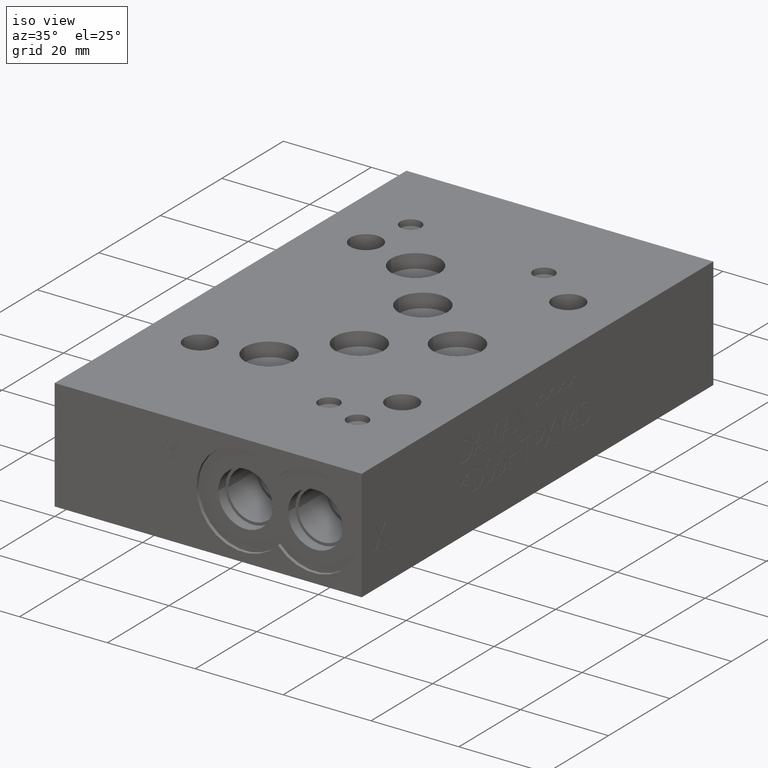
[diagram: clean part render]
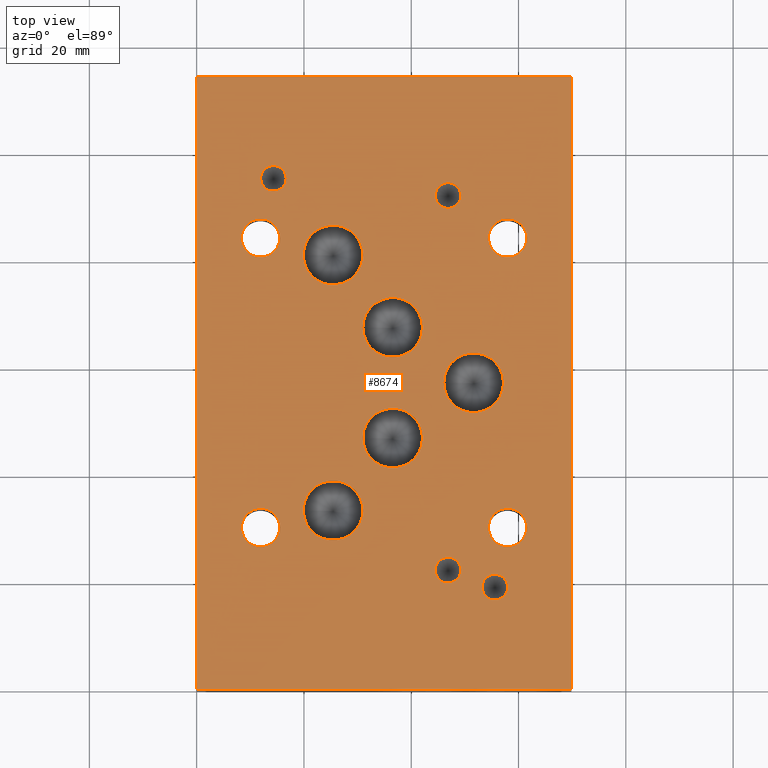
[diagram: tour spotlight — one face highlighted and labeled with its STEP entity id]
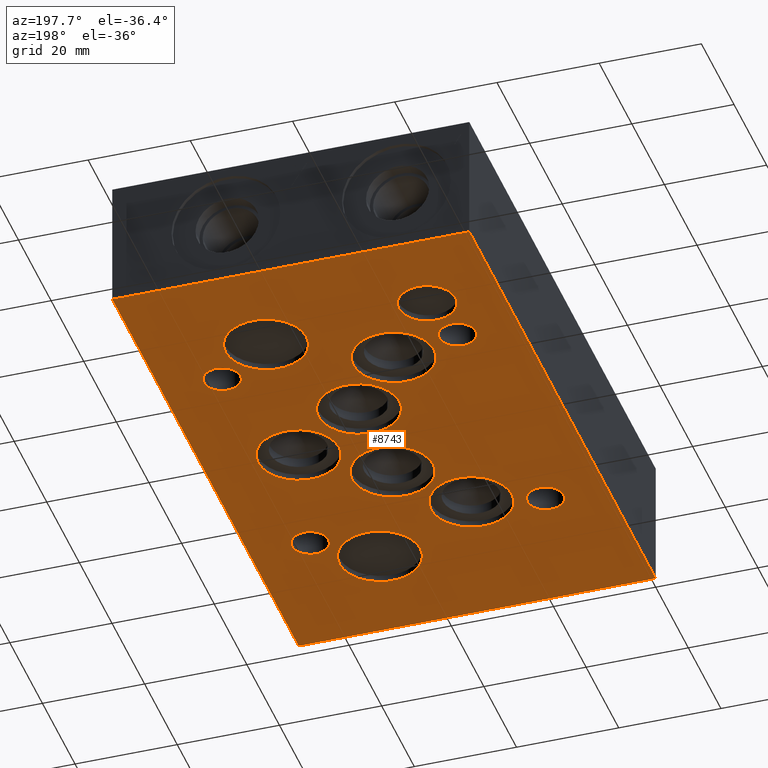
[diagram: tour spotlight — one face highlighted and labeled with its STEP entity id]
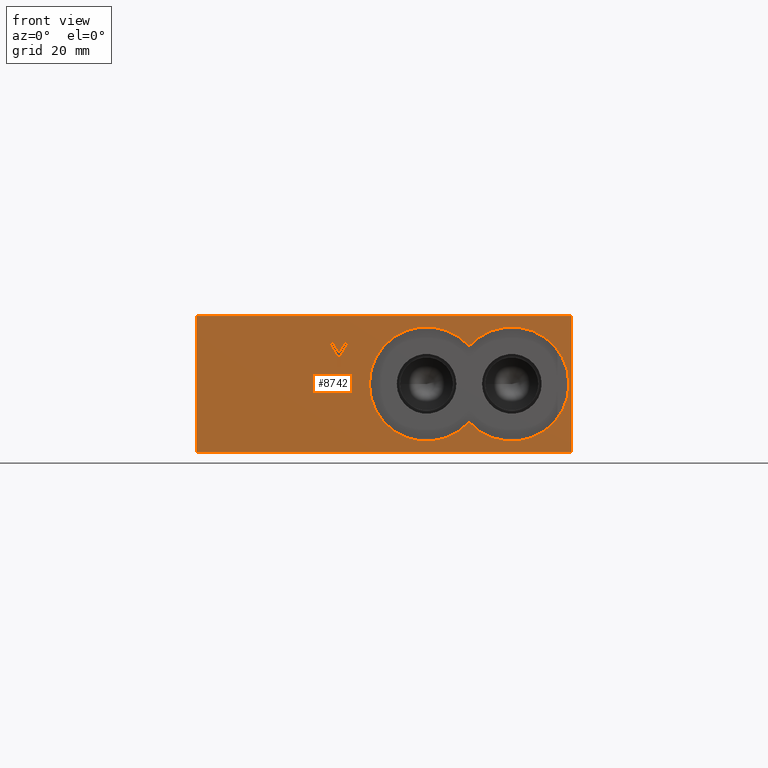
[diagram: tour spotlight — one face highlighted and labeled with its STEP entity id]
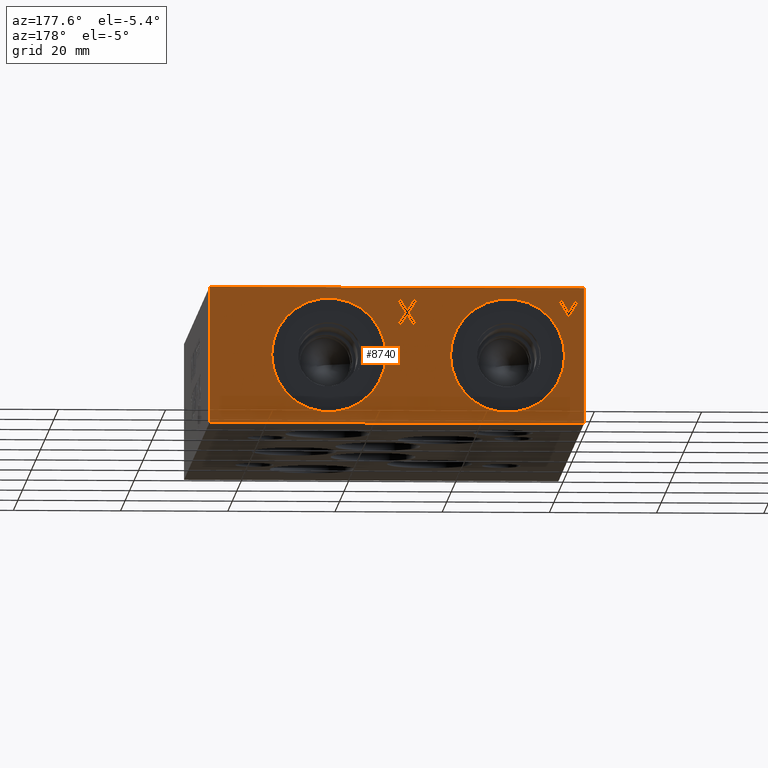
[diagram: tour spotlight — one face highlighted and labeled with its STEP entity id]
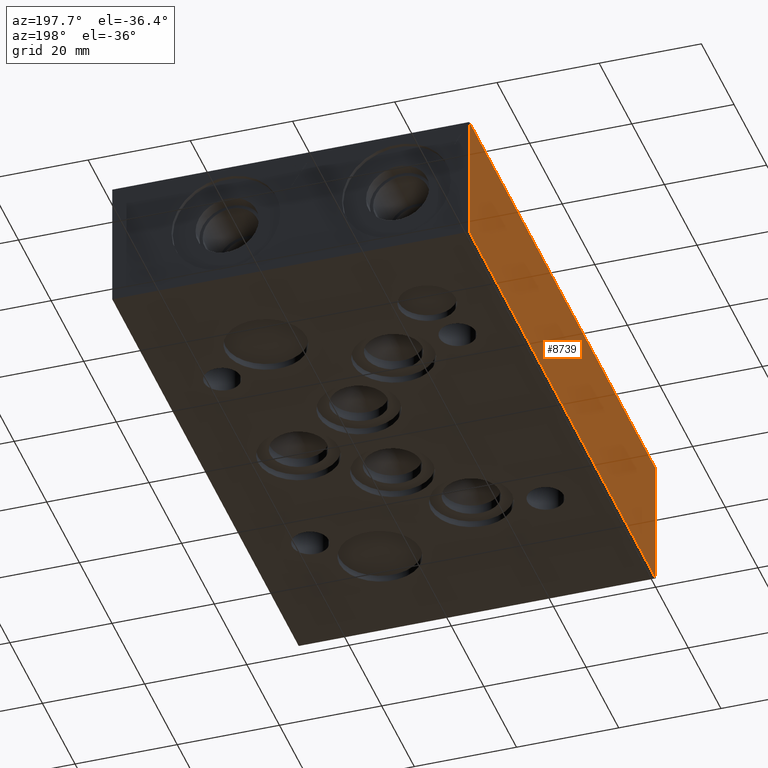
[diagram: tour spotlight — one face highlighted and labeled with its STEP entity id]
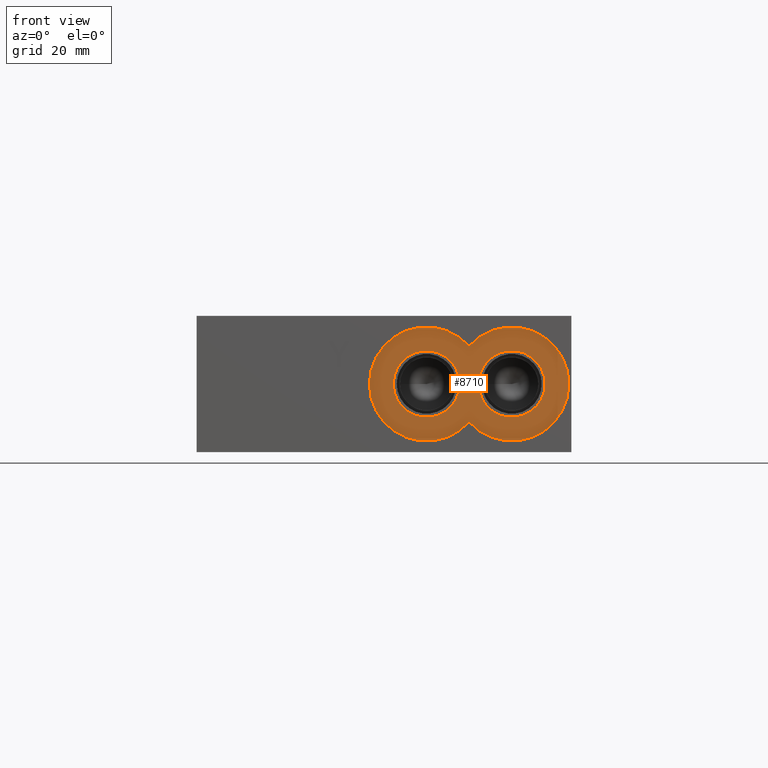
[diagram: tour spotlight — one face highlighted and labeled with its STEP entity id]
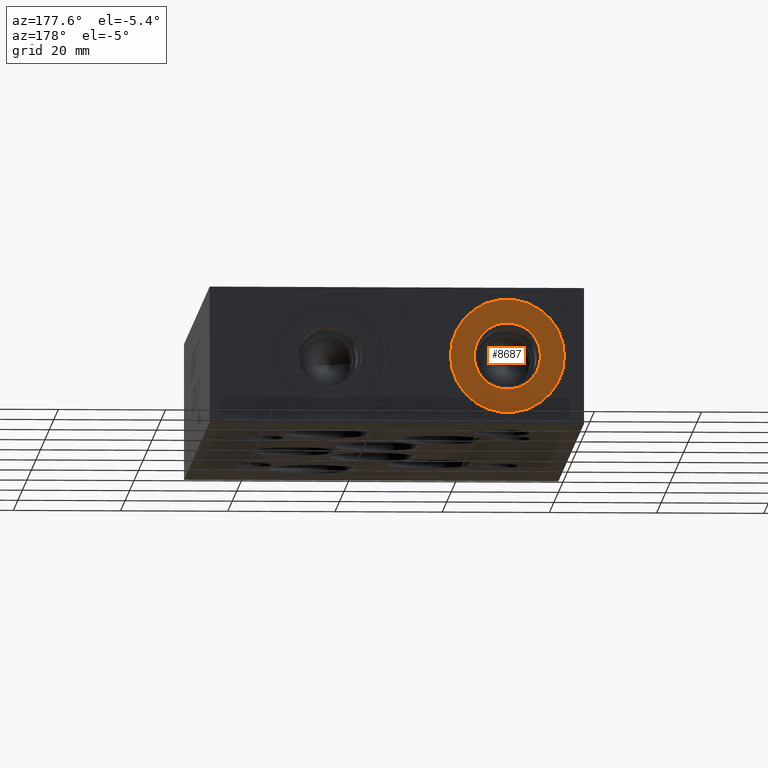
[diagram: tour spotlight — one face highlighted and labeled with its STEP entity id]
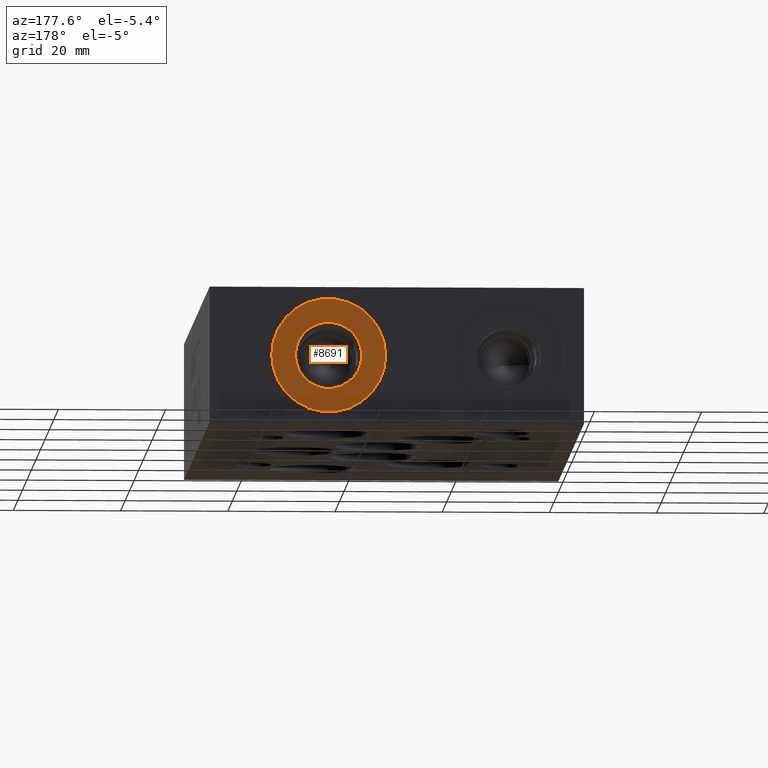
[diagram: tour spotlight — one face highlighted and labeled with its STEP entity id]
A machine part: a face-by-face anatomy tour. The part has 456 B-rep faces; the first image is the clean iso view, then the 8 largest visible faces are spotlighted one at a time (largest first), each with its STEP entity span.

Face 1 — top view, entity #8674. In plain terms, the highlighted planar face has unit normal (0, 0, 1).
Definition (entity closure, byte-faithful):
#66=CIRCLE('',#9107,3.5687);
#67=CIRCLE('',#9108,3.5687);
#69=CIRCLE('',#9111,3.5687);
#70=CIRCLE('',#9112,3.5687);
#72=CIRCLE('',#9115,3.5687);
#73=CIRCLE('',#9116,3.5687);
#74=CIRCLE('',#9118,3.5687);
#75=CIRCLE('',#9119,3.5687);
#76=CIRCLE('',#9120,3.5687);
#77=CIRCLE('',#9121,3.5687);
#78=CIRCLE('',#9122,5.5626);
#79=CIRCLE('',#9123,5.55625);
#80=CIRCLE('',#9124,5.55625);
#81=CIRCLE('',#9125,5.55625);
#82=CIRCLE('',#9126,5.55625);
#83=CIRCLE('',#9127,2.3876);
#84=CIRCLE('',#9128,2.3876);
#85=CIRCLE('',#9129,2.3876);
#86=CIRCLE('',#9130,2.3876);
#221=FACE_BOUND('',#1337,.T.);
#222=FACE_BOUND('',#1338,.T.);
#223=FACE_BOUND('',#1339,.T.);
#224=FACE_BOUND('',#1340,.T.);
#225=FACE_BOUND('',#1341,.T.);
#226=FACE_BOUND('',#1342,.T.);
#227=FACE_BOUND('',#1343,.T.);
#228=FACE_BOUND('',#1344,.T.);
#229=FACE_BOUND('',#1345,.T.);
#230=FACE_BOUND('',#1346,.T.);
#231=FACE_BOUND('',#1347,.T.);
#232=FACE_BOUND('',#1348,.T.);
#233=FACE_BOUND('',#1349,.T.);
#848=FACE_OUTER_BOUND('',#1336,.T.);
#1336=EDGE_LOOP('',(#7315,#7316,#7317,#7318));
#1337=EDGE_LOOP('',(#7319,#7320,#7321));
#1338=EDGE_LOOP('',(#7322,#7323,#7324));
#1339=EDGE_LOOP('',(#7325));
#1340=EDGE_LOOP('',(#7326,#7327,#7328));
#1341=EDGE_LOOP('',(#7329));
#1342=EDGE_LOOP('',(#7330));
#1343=EDGE_LOOP('',(#7331));
#1344=EDGE_LOOP('',(#7332));
#1345=EDGE_LOOP('',(#7333));
#1346=EDGE_LOOP('',(#7334));
#1347=EDGE_LOOP('',(#7335));
#1348=EDGE_LOOP('',(#7336));
#1349=EDGE_LOOP('',(#7337));
#1898=LINE('',#13060,#2835);
#2331=LINE('',#14218,#3268);
#2332=LINE('',#14220,#3269);
#2333=LINE('',#14221,#3270);
#2835=VECTOR('',#9992,10.);
#3268=VECTOR('',#10851,10.);
#3269=VECTOR('',#10852,10.);
#3270=VECTOR('',#10853,10.);
#3699=VERTEX_POINT('',#13057);
#3700=VERTEX_POINT('',#13059);
#4013=VERTEX_POINT('',#14126);
#4014=VERTEX_POINT('',#14128);
#4017=VERTEX_POINT('',#14151);
#4019=VERTEX_POINT('',#14157);
#4020=VERTEX_POINT('',#14159);
#4023=VERTEX_POINT('',#14182);
#4025=VERTEX_POINT('',#14188);
#4026=VERTEX_POINT('',#14190);
#4029=VERTEX_POINT('',#14213);
#4030=VERTEX_POINT('',#14217);
#4031=VERTEX_POINT('',#14219);
#4032=VERTEX_POINT('',#14224);
#4033=VERTEX_POINT('',#14227);
#4034=VERTEX_POINT('',#14229);
#4035=VERTEX_POINT('',#14231);
#4036=VERTEX_POINT('',#14233);
#4037=VERTEX_POINT('',#14235);
#4038=VERTEX_POINT('',#14237);
#4039=VERTEX_POINT('',#14239);
#4040=VERTEX_POINT('',#14241);
#4041=VERTEX_POINT('',#14243);
#4670=EDGE_CURVE('',#3700,#3699,#1898,.T.);
#5138=EDGE_CURVE('',#4014,#4013,#66,.T.);
#5142=EDGE_CURVE('',#4013,#4017,#67,.T.);
#5145=EDGE_CURVE('',#4020,#4019,#69,.T.);
#5149=EDGE_CURVE('',#4019,#4023,#70,.T.);
#5152=EDGE_CURVE('',#4026,#4025,#72,.T.);
#5156=EDGE_CURVE('',#4025,#4029,#73,.T.);
#5157=EDGE_CURVE('',#4030,#3700,#2331,.T.);
#5158=EDGE_CURVE('',#3699,#4031,#2332,.T.);
#5159=EDGE_CURVE('',#4031,#4030,#2333,.T.);
#5160=EDGE_CURVE('',#4029,#4026,#74,.T.);
#5161=EDGE_CURVE('',#4023,#4020,#75,.T.);
#5162=EDGE_CURVE('',#4032,#4032,#76,.T.);
#5163=EDGE_CURVE('',#4017,#4014,#77,.T.);
#5164=EDGE_CURVE('',#4033,#4033,#78,.T.);
#5165=EDGE_CURVE('',#4034,#4034,#79,.T.);
#5166=EDGE_CURVE('',#4035,#4035,#80,.T.);
#5167=EDGE_CURVE('',#4036,#4036,#81,.T.);
#5168=EDGE_CURVE('',#4037,#4037,#82,.T.);
#5169=EDGE_CURVE('',#4038,#4038,#83,.T.);
#5170=EDGE_CURVE('',#4039,#4039,#84,.T.);
#5171=EDGE_CURVE('',#4040,#4040,#85,.T.);
#5172=EDGE_CURVE('',#4041,#4041,#86,.T.);
#7315=ORIENTED_EDGE('',*,*,#5157,.T.);
#7316=ORIENTED_EDGE('',*,*,#4670,.T.);
#7317=ORIENTED_EDGE('',*,*,#5158,.T.);
#7318=ORIENTED_EDGE('',*,*,#5159,.T.);
#7319=ORIENTED_EDGE('',*,*,#5152,.T.);
#7320=ORIENTED_EDGE('',*,*,#5156,.T.);
#7321=ORIENTED_EDGE('',*,*,#5160,.T.);
#7322=ORIENTED_EDGE('',*,*,#5145,.T.);
#7323=ORIENTED_EDGE('',*,*,#5149,.T.);
#7324=ORIENTED_EDGE('',*,*,#5161,.T.);
#7325=ORIENTED_EDGE('',*,*,#5162,.T.);
#7326=ORIENTED_EDGE('',*,*,#5138,.T.);
#7327=ORIENTED_EDGE('',*,*,#5142,.T.);
#7328=ORIENTED_EDGE('',*,*,#5163,.T.);
#7329=ORIENTED_EDGE('',*,*,#5164,.T.);
#7330=ORIENTED_EDGE('',*,*,#5165,.T.);
#7331=ORIENTED_EDGE('',*,*,#5166,.T.);
#7332=ORIENTED_EDGE('',*,*,#5167,.T.);
#7333=ORIENTED_EDGE('',*,*,#5168,.T.);
#7334=ORIENTED_EDGE('',*,*,#5169,.T.);
#7335=ORIENTED_EDGE('',*,*,#5170,.T.);
#7336=ORIENTED_EDGE('',*,*,#5171,.T.);
#7337=ORIENTED_EDGE('',*,*,#5172,.T.);
#7920=PLANE('',#9117);
#8674=ADVANCED_FACE('',(#848,#221,#222,#223,#224,#225,#226,#227,#228,#229,
#230,#231,#232,#233),#7920,.T.);
#9107=AXIS2_PLACEMENT_3D('',#14129,#10821,#10822);
#9108=AXIS2_PLACEMENT_3D('',#14153,#10825,#10826);
#9111=AXIS2_PLACEMENT_3D('',#14160,#10832,#10833);
#9112=AXIS2_PLACEMENT_3D('',#14184,#10836,#10837);
#9115=AXIS2_PLACEMENT_3D('',#14191,#10843,#10844);
#9116=AXIS2_PLACEMENT_3D('',#14215,#10847,#10848);
#9117=AXIS2_PLACEMENT_3D('',#14216,#10849,#10850);
#9118=AXIS2_PLACEMENT_3D('',#14222,#10854,#10855);
#9119=AXIS2_PLACEMENT_3D('',#14223,#10856,#10857);
#9120=AXIS2_PLACEMENT_3D('',#14225,#10858,#10859);
#9121=AXIS2_PLACEMENT_3D('',#14226,#10860,#10861);
#9122=AXIS2_PLACEMENT_3D('',#14228,#10862,#10863);
#9123=AXIS2_PLACEMENT_3D('',#14230,#10864,#10865);
#9124=AXIS2_PLACEMENT_3D('',#14232,#10866,#10867);
#9125=AXIS2_PLACEMENT_3D('',#14234,#10868,#10869);
#9126=AXIS2_PLACEMENT_3D('',#14236,#10870,#10871);
#9127=AXIS2_PLACEMENT_3D('',#14238,#10872,#10873);
#9128=AXIS2_PLACEMENT_3D('',#14240,#10874,#10875);
#9129=AXIS2_PLACEMENT_3D('',#14242,#10876,#10877);
#9130=AXIS2_PLACEMENT_3D('',#14244,#10878,#10879);
#9992=DIRECTION('',(0.,1.,0.));
#10821=DIRECTION('center_axis',(0.,0.,-1.));
#10822=DIRECTION('ref_axis',(1.,0.,0.));
#10825=DIRECTION('center_axis',(0.,0.,-1.));
#10826=DIRECTION('ref_axis',(1.,0.,0.));
#10832=DIRECTION('center_axis',(0.,0.,-1.));
#10833=DIRECTION('ref_axis',(1.,0.,0.));
#10836=DIRECTION('center_axis',(0.,0.,-1.));
#10837=DIRECTION('ref_axis',(1.,0.,0.));
#10843=DIRECTION('center_axis',(0.,0.,-1.));
#10844=DIRECTION('ref_axis',(1.,0.,0.));
#10847=DIRECTION('center_axis',(0.,0.,-1.));
#10848=DIRECTION('ref_axis',(1.,0.,0.));
#10849=DIRECTION('center_axis',(0.,0.,1.));
#10850=DIRECTION('ref_axis',(1.,0.,0.));
#10851=DIRECTION('',(1.,0.,0.));
#10852=DIRECTION('',(-1.,0.,0.));
#10853=DIRECTION('',(0.,-1.,0.));
#10854=DIRECTION('center_axis',(0.,0.,-1.));
#10855=DIRECTION('ref_axis',(1.,0.,0.));
#10856=DIRECTION('center_axis',(0.,0.,-1.));
#10857=DIRECTION('ref_axis',(1.,0.,0.));
#10858=DIRECTION('center_axis',(0.,0.,-1.));
#10859=DIRECTION('ref_axis',(1.,0.,0.));
#10860=DIRECTION('center_axis',(0.,0.,-1.));
#10861=DIRECTION('ref_axis',(1.,0.,0.));
#10862=DIRECTION('center_axis',(0.,0.,-1.));
#10863=DIRECTION('ref_axis',(1.,0.,0.));
#10864=DIRECTION('center_axis',(0.,0.,-1.));
#10865=DIRECTION('ref_axis',(1.,0.,0.));
#10866=DIRECTION('center_axis',(0.,0.,-1.));
#10867=DIRECTION('ref_axis',(1.,0.,0.));
#10868=DIRECTION('center_axis',(0.,0.,-1.));
#10869=DIRECTION('ref_axis',(1.,0.,0.));
#10870=DIRECTION('center_axis',(0.,0.,-1.));
#10871=DIRECTION('ref_axis',(1.,0.,0.));
#10872=DIRECTION('center_axis',(0.,0.,-1.));
#10873=DIRECTION('ref_axis',(1.,0.,0.));
#10874=DIRECTION('center_axis',(0.,0.,-1.));
#10875=DIRECTION('ref_axis',(1.,0.,0.));
#10876=DIRECTION('center_axis',(0.,0.,-1.));
#10877=DIRECTION('ref_axis',(1.,0.,0.));
#10878=DIRECTION('center_axis',(0.,0.,-1.));
#10879=DIRECTION('ref_axis',(1.,0.,0.));
#13057=CARTESIAN_POINT('',(69.85,114.3,25.4));
#13059=CARTESIAN_POINT('',(69.85,0.,25.4));
#13060=CARTESIAN_POINT('',(69.85,0.,25.4));
#14126=CARTESIAN_POINT('',(54.3941,30.1752,25.4));
#14128=CARTESIAN_POINT('',(54.3941056494707,30.16885,25.4));
#14129=CARTESIAN_POINT('Origin',(57.9628,30.1752,25.4));
#14151=CARTESIAN_POINT('',(61.5314943505293,30.16885,25.4));
#14153=CARTESIAN_POINT('Origin',(57.9628,30.1752,25.4));
#14157=CARTESIAN_POINT('',(54.3941,84.1629,25.4));
#14159=CARTESIAN_POINT('',(54.3941225979363,84.1502,25.4));
#14160=CARTESIAN_POINT('Origin',(57.9628,84.1629,25.4));
#14182=CARTESIAN_POINT('',(61.5314774020637,84.1502,25.4));
#14184=CARTESIAN_POINT('Origin',(57.9628,84.1629,25.4));
#14188=CARTESIAN_POINT('',(8.3566,30.1752,25.4));
#14190=CARTESIAN_POINT('',(8.35660564947067,30.16885,25.4));
#14191=CARTESIAN_POINT('Origin',(11.9253,30.1752,25.4));
#14213=CARTESIAN_POINT('',(15.4939943505293,30.16885,25.4));
#14215=CARTESIAN_POINT('Origin',(11.9253,30.1752,25.4));
#14216=CARTESIAN_POINT('Origin',(34.925,57.15,25.4));
#14217=CARTESIAN_POINT('',(0.,0.,25.4));
#14218=CARTESIAN_POINT('',(0.,0.,25.4));
#14219=CARTESIAN_POINT('',(0.,114.3,25.4));
#14220=CARTESIAN_POINT('',(69.85,114.3,25.4));
#14221=CARTESIAN_POINT('',(0.,114.3,25.4));
#14222=CARTESIAN_POINT('Origin',(11.9253,30.1625,25.4));
#14223=CARTESIAN_POINT('Origin',(57.9628,84.1375,25.4));
#14224=CARTESIAN_POINT('',(8.3439,84.1502,25.4));
#14225=CARTESIAN_POINT('Origin',(11.9126,84.1502,25.4));
#14226=CARTESIAN_POINT('Origin',(57.9628,30.1625,25.4));
#14227=CARTESIAN_POINT('',(46.0756,57.1627,25.4));
#14228=CARTESIAN_POINT('Origin',(51.6382,57.1627,25.4));
#14229=CARTESIAN_POINT('',(19.87677,33.3502,25.4));
#14230=CARTESIAN_POINT('Origin',(25.43302,33.3502,25.4));
#14231=CARTESIAN_POINT('',(30.98165,67.48018,25.4));
#14232=CARTESIAN_POINT('Origin',(36.5379,67.48018,25.4));
#14233=CARTESIAN_POINT('',(19.87677,80.9752,25.4));
#14234=CARTESIAN_POINT('Origin',(25.43302,80.9752,25.4));
#14235=CARTESIAN_POINT('',(30.98673,46.84522,25.4));
#14236=CARTESIAN_POINT('Origin',(36.54298,46.84522,25.4));
#14237=CARTESIAN_POINT('',(44.4754,22.225,25.4));
#14238=CARTESIAN_POINT('Origin',(46.863,22.225,25.4));
#14239=CARTESIAN_POINT('',(11.9253,95.2627,25.4));
#14240=CARTESIAN_POINT('Origin',(14.3129,95.2627,25.4));
#14241=CARTESIAN_POINT('',(53.2003,19.0627,25.4));
#14242=CARTESIAN_POINT('Origin',(55.5879,19.0627,25.4));
#14243=CARTESIAN_POINT('',(44.4754,92.075,25.4));
#14244=CARTESIAN_POINT('Origin',(46.863,92.075,25.4));

Face 2 — auxiliary view, entity #8743. In plain terms, the highlighted planar face has unit normal (0, 0, 1).
Definition (entity closure, byte-faithful):
#39=CIRCLE('',#9054,5.5626);
#51=CIRCLE('',#9078,7.9375);
#53=CIRCLE('',#9082,7.9375);
#55=CIRCLE('',#9086,7.9375);
#57=CIRCLE('',#9090,7.9375);
#59=CIRCLE('',#9094,7.9375);
#61=CIRCLE('',#9098,7.9375);
#63=CIRCLE('',#9102,7.9375);
#65=CIRCLE('',#9106,3.5687);
#68=CIRCLE('',#9110,3.5687);
#71=CIRCLE('',#9114,3.5687);
#137=CIRCLE('',#9241,3.5687);
#252=FACE_BOUND('',#1437,.T.);
#253=FACE_BOUND('',#1438,.T.);
#254=FACE_BOUND('',#1439,.T.);
#255=FACE_BOUND('',#1440,.T.);
#256=FACE_BOUND('',#1441,.T.);
#257=FACE_BOUND('',#1442,.T.);
#258=FACE_BOUND('',#1443,.T.);
#259=FACE_BOUND('',#1444,.T.);
#260=FACE_BOUND('',#1445,.T.);
#261=FACE_BOUND('',#1446,.T.);
#262=FACE_BOUND('',#1447,.T.);
#263=FACE_BOUND('',#1448,.T.);
#917=FACE_OUTER_BOUND('',#1436,.T.);
#1436=EDGE_LOOP('',(#7604,#7605,#7606,#7607));
#1437=EDGE_LOOP('',(#7608));
#1438=EDGE_LOOP('',(#7609));
#1439=EDGE_LOOP('',(#7610));
#1440=EDGE_LOOP('',(#7611));
#1441=EDGE_LOOP('',(#7612));
#1442=EDGE_LOOP('',(#7613));
#1443=EDGE_LOOP('',(#7614));
#1444=EDGE_LOOP('',(#7615));
#1445=EDGE_LOOP('',(#7616));
#1446=EDGE_LOOP('',(#7617));
#1447=EDGE_LOOP('',(#7618));
#1448=EDGE_LOOP('',(#7619));
#1896=LINE('',#13056,#2833);
#2381=LINE('',#14475,#3318);
#2384=LINE('',#14479,#3321);
#2385=LINE('',#14482,#3322);
#2833=VECTOR('',#9990,10.);
#3318=VECTOR('',#11163,10.);
#3321=VECTOR('',#11168,10.);
#3322=VECTOR('',#11173,10.);
#3697=VERTEX_POINT('',#13054);
#3698=VERTEX_POINT('',#13055);
#3981=VERTEX_POINT('',#14023);
#3998=VERTEX_POINT('',#14075);
#4000=VERTEX_POINT('',#14082);
#4002=VERTEX_POINT('',#14089);
#4004=VERTEX_POINT('',#14096);
#4006=VERTEX_POINT('',#14103);
#4008=VERTEX_POINT('',#14110);
#4010=VERTEX_POINT('',#14117);
#4012=VERTEX_POINT('',#14124);
#4018=VERTEX_POINT('',#14155);
#4024=VERTEX_POINT('',#14186);
#4104=VERTEX_POINT('',#14463);
#4105=VERTEX_POINT('',#14473);
#4106=VERTEX_POINT('',#14474);
#4668=EDGE_CURVE('',#3697,#3698,#1896,.T.);
#5092=EDGE_CURVE('',#3981,#3981,#39,.T.);
#5115=EDGE_CURVE('',#3998,#3998,#51,.T.);
#5118=EDGE_CURVE('',#4000,#4000,#53,.T.);
#5121=EDGE_CURVE('',#4002,#4002,#55,.T.);
#5124=EDGE_CURVE('',#4004,#4004,#57,.T.);
#5127=EDGE_CURVE('',#4006,#4006,#59,.T.);
#5130=EDGE_CURVE('',#4008,#4008,#61,.T.);
#5133=EDGE_CURVE('',#4010,#4010,#63,.T.);
#5136=EDGE_CURVE('',#4012,#4012,#65,.T.);
#5143=EDGE_CURVE('',#4018,#4018,#68,.T.);
#5150=EDGE_CURVE('',#4024,#4024,#71,.T.);
#5270=EDGE_CURVE('',#4104,#4104,#137,.T.);
#5273=EDGE_CURVE('',#4105,#4106,#2381,.T.);
#5276=EDGE_CURVE('',#3698,#4105,#2384,.T.);
#5277=EDGE_CURVE('',#4106,#3697,#2385,.T.);
#7604=ORIENTED_EDGE('',*,*,#5277,.F.);
#7605=ORIENTED_EDGE('',*,*,#5273,.F.);
#7606=ORIENTED_EDGE('',*,*,#5276,.F.);
#7607=ORIENTED_EDGE('',*,*,#4668,.F.);
#7608=ORIENTED_EDGE('',*,*,#5092,.T.);
#7609=ORIENTED_EDGE('',*,*,#5115,.T.);
#7610=ORIENTED_EDGE('',*,*,#5118,.T.);
#7611=ORIENTED_EDGE('',*,*,#5121,.T.);
#7612=ORIENTED_EDGE('',*,*,#5124,.T.);
#7613=ORIENTED_EDGE('',*,*,#5127,.T.);
#7614=ORIENTED_EDGE('',*,*,#5130,.T.);
#7615=ORIENTED_EDGE('',*,*,#5133,.T.);
#7616=ORIENTED_EDGE('',*,*,#5136,.T.);
#7617=ORIENTED_EDGE('',*,*,#5270,.T.);
#7618=ORIENTED_EDGE('',*,*,#5143,.T.);
#7619=ORIENTED_EDGE('',*,*,#5150,.T.);
#7936=PLANE('',#9252);
#8743=ADVANCED_FACE('',(#917,#252,#253,#254,#255,#256,#257,#258,#259,#260,
#261,#262,#263),#7936,.F.);
#9054=AXIS2_PLACEMENT_3D('',#14024,#10696,#10697);
#9078=AXIS2_PLACEMENT_3D('',#14076,#10755,#10756);
#9082=AXIS2_PLACEMENT_3D('',#14083,#10764,#10765);
#9086=AXIS2_PLACEMENT_3D('',#14090,#10773,#10774);
#9090=AXIS2_PLACEMENT_3D('',#14097,#10782,#10783);
#9094=AXIS2_PLACEMENT_3D('',#14104,#10791,#10792);
#9098=AXIS2_PLACEMENT_3D('',#14111,#10800,#10801);
#9102=AXIS2_PLACEMENT_3D('',#14118,#10809,#10810);
#9106=AXIS2_PLACEMENT_3D('',#14125,#10818,#10819);
#9110=AXIS2_PLACEMENT_3D('',#14156,#10829,#10830);
#9114=AXIS2_PLACEMENT_3D('',#14187,#10840,#10841);
#9241=AXIS2_PLACEMENT_3D('',#14465,#11147,#11148);
#9252=AXIS2_PLACEMENT_3D('',#14483,#11174,#11175);
#9990=DIRECTION('',(0.,1.,0.));
#10696=DIRECTION('center_axis',(0.,0.,1.));
#10697=DIRECTION('ref_axis',(1.,0.,0.));
#10755=DIRECTION('center_axis',(0.,0.,1.));
#10756=DIRECTION('ref_axis',(1.,0.,0.));
#10764=DIRECTION('center_axis',(0.,0.,1.));
#10765=DIRECTION('ref_axis',(1.,0.,0.));
#10773=DIRECTION('center_axis',(0.,0.,1.));
#10774=DIRECTION('ref_axis',(1.,0.,0.));
#10782=DIRECTION('center_axis',(0.,0.,1.));
#10783=DIRECTION('ref_axis',(1.,0.,0.));
#10791=DIRECTION('center_axis',(0.,0.,1.));
#10792=DIRECTION('ref_axis',(1.,0.,0.));
#10800=DIRECTION('center_axis',(0.,0.,1.));
#10801=DIRECTION('ref_axis',(1.,0.,0.));
#10809=DIRECTION('center_axis',(0.,0.,1.));
#10810=DIRECTION('ref_axis',(1.,0.,0.));
#10818=DIRECTION('center_axis',(0.,0.,1.));
#10819=DIRECTION('ref_axis',(1.,0.,0.));
#10829=DIRECTION('center_axis',(0.,0.,1.));
#10830=DIRECTION('ref_axis',(1.,0.,0.));
#10840=DIRECTION('center_axis',(0.,0.,1.));
#10841=DIRECTION('ref_axis',(1.,0.,0.));
#11147=DIRECTION('center_axis',(0.,0.,1.));
#11148=DIRECTION('ref_axis',(1.,0.,0.));
#11163=DIRECTION('',(0.,-1.,0.));
#11168=DIRECTION('',(-1.,0.,0.));
#11173=DIRECTION('',(1.,0.,0.));
#11174=DIRECTION('center_axis',(0.,0.,1.));
#11175=DIRECTION('ref_axis',(1.,0.,0.));
#13054=CARTESIAN_POINT('',(69.85,0.,0.));
#13055=CARTESIAN_POINT('',(69.85,114.3,0.));
#13056=CARTESIAN_POINT('',(69.85,0.,0.));
#14023=CARTESIAN_POINT('',(8.7376,95.2754,0.));
#14024=CARTESIAN_POINT('Origin',(14.3002,95.2754,0.));
#14075=CARTESIAN_POINT('',(38.9255,92.075,0.));
#14076=CARTESIAN_POINT('Origin',(46.863,92.075,0.));
#14082=CARTESIAN_POINT('',(28.6131,46.8376,0.));
#14083=CARTESIAN_POINT('Origin',(36.5506,46.8376,0.));
#14089=CARTESIAN_POINT('',(17.4879,80.9752,0.));
#14090=CARTESIAN_POINT('Origin',(25.4254,80.9752,0.));
#14096=CARTESIAN_POINT('',(43.7007,57.15,0.));
#14097=CARTESIAN_POINT('Origin',(51.6382,57.15,0.));
#14103=CARTESIAN_POINT('',(28.5877,67.4878,0.));
#14104=CARTESIAN_POINT('Origin',(36.5252,67.4878,0.));
#14110=CARTESIAN_POINT('',(17.4879,33.3502,0.));
#14111=CARTESIAN_POINT('Origin',(25.4254,33.3502,0.));
#14117=CARTESIAN_POINT('',(38.9255,22.225,0.));
#14118=CARTESIAN_POINT('Origin',(46.863,22.225,0.));
#14124=CARTESIAN_POINT('',(54.3941,30.1752,-1.77635683940025E-14));
#14125=CARTESIAN_POINT('Origin',(57.9628,30.1752,0.));
#14155=CARTESIAN_POINT('',(54.3941,84.1629,-1.77635683940025E-14));
#14156=CARTESIAN_POINT('Origin',(57.9628,84.1629,0.));
#14186=CARTESIAN_POINT('',(8.3566,30.1752,-1.77635683940025E-14));
#14187=CARTESIAN_POINT('Origin',(11.9253,30.1752,0.));
#14463=CARTESIAN_POINT('',(8.3439,84.1502,0.));
#14465=CARTESIAN_POINT('Origin',(11.9126,84.1502,0.));
#14473=CARTESIAN_POINT('',(0.,114.3,0.));
#14474=CARTESIAN_POINT('',(0.,0.,0.));
#14475=CARTESIAN_POINT('',(0.,114.3,0.));
#14479=CARTESIAN_POINT('',(69.85,114.3,0.));
#14482=CARTESIAN_POINT('',(0.,0.,0.));
#14483=CARTESIAN_POINT('Origin',(34.925,57.15,0.));

Face 3 — front view, entity #8742. In plain terms, the highlighted planar face has unit normal (0, -1, 0).
Definition (entity closure, byte-faithful):
#119=CIRCLE('',#9196,10.6426);
#125=CIRCLE('',#9206,10.6426);
#250=FACE_BOUND('',#1434,.T.);
#251=FACE_BOUND('',#1435,.T.);
#916=FACE_OUTER_BOUND('',#1433,.T.);
#1433=EDGE_LOOP('',(#7589,#7590,#7591,#7592));
#1434=EDGE_LOOP('',(#7593,#7594,#7595,#7596,#7597,#7598,#7599,#7600,#7601));
#1435=EDGE_LOOP('',(#7602,#7603));
#1485=LINE('',#11253,#2422);
#1489=LINE('',#11261,#2426);
#1492=LINE('',#11267,#2429);
#1495=LINE('',#11273,#2432);
#1498=LINE('',#11279,#2435);
#1501=LINE('',#11285,#2438);
#1504=LINE('',#11291,#2441);
#1507=LINE('',#11297,#2444);
#1510=LINE('',#11302,#2447);
#1899=LINE('',#13061,#2836);
#2331=LINE('',#14218,#3268);
#2382=LINE('',#14476,#3319);
#2385=LINE('',#14482,#3322);
#2422=VECTOR('',#9319,10.);
#2426=VECTOR('',#9325,10.);
#2429=VECTOR('',#9330,10.);
#2432=VECTOR('',#9335,10.);
#2435=VECTOR('',#9340,10.);
#2438=VECTOR('',#9345,10.);
#2441=VECTOR('',#9350,10.);
#2444=VECTOR('',#9355,10.);
#2447=VECTOR('',#9360,10.);
#2836=VECTOR('',#9993,10.);
#3268=VECTOR('',#10851,10.);
#3319=VECTOR('',#11164,10.);
#3322=VECTOR('',#11173,10.);
#3347=VERTEX_POINT('',#11251);
#3348=VERTEX_POINT('',#11252);
#3351=VERTEX_POINT('',#11260);
#3353=VERTEX_POINT('',#11266);
#3355=VERTEX_POINT('',#11272);
#3357=VERTEX_POINT('',#11278);
#3359=VERTEX_POINT('',#11284);
#3361=VERTEX_POINT('',#11290);
#3363=VERTEX_POINT('',#11296);
#3697=VERTEX_POINT('',#13054);
#3700=VERTEX_POINT('',#13059);
#4030=VERTEX_POINT('',#14217);
#4079=VERTEX_POINT('',#14371);
#4080=VERTEX_POINT('',#14373);
#4106=VERTEX_POINT('',#14474);
#4143=EDGE_CURVE('',#3347,#3348,#1485,.T.);
#4147=EDGE_CURVE('',#3351,#3347,#1489,.T.);
#4150=EDGE_CURVE('',#3353,#3351,#1492,.T.);
#4153=EDGE_CURVE('',#3355,#3353,#1495,.T.);
#4156=EDGE_CURVE('',#3357,#3355,#1498,.T.);
#4159=EDGE_CURVE('',#3359,#3357,#1501,.T.);
#4162=EDGE_CURVE('',#3361,#3359,#1504,.T.);
#4165=EDGE_CURVE('',#3363,#3361,#1507,.T.);
#4168=EDGE_CURVE('',#3348,#3363,#1510,.T.);
#4671=EDGE_CURVE('',#3697,#3700,#1899,.T.);
#5157=EDGE_CURVE('',#4030,#3700,#2331,.T.);
#5230=EDGE_CURVE('',#4080,#4079,#119,.T.);
#5238=EDGE_CURVE('',#4079,#4080,#125,.T.);
#5274=EDGE_CURVE('',#4106,#4030,#2382,.T.);
#5277=EDGE_CURVE('',#4106,#3697,#2385,.T.);
#7589=ORIENTED_EDGE('',*,*,#5277,.T.);
#7590=ORIENTED_EDGE('',*,*,#4671,.T.);
#7591=ORIENTED_EDGE('',*,*,#5157,.F.);
#7592=ORIENTED_EDGE('',*,*,#5274,.F.);
#7593=ORIENTED_EDGE('',*,*,#4143,.T.);
#7594=ORIENTED_EDGE('',*,*,#4168,.T.);
#7595=ORIENTED_EDGE('',*,*,#4165,.T.);
#7596=ORIENTED_EDGE('',*,*,#4162,.T.);
#7597=ORIENTED_EDGE('',*,*,#4159,.T.);
#7598=ORIENTED_EDGE('',*,*,#4156,.T.);
#7599=ORIENTED_EDGE('',*,*,#4153,.T.);
#7600=ORIENTED_EDGE('',*,*,#4150,.T.);
#7601=ORIENTED_EDGE('',*,*,#4147,.T.);
#7602=ORIENTED_EDGE('',*,*,#5230,.T.);
#7603=ORIENTED_EDGE('',*,*,#5238,.T.);
#7935=PLANE('',#9251);
#8742=ADVANCED_FACE('',(#916,#250,#251),#7935,.T.);
#9196=AXIS2_PLACEMENT_3D('',#14374,#11035,#11036);
#9206=AXIS2_PLACEMENT_3D('',#14390,#11057,#11058);
#9251=AXIS2_PLACEMENT_3D('',#14481,#11171,#11172);
#9319=DIRECTION('',(1.,0.,0.));
#9325=DIRECTION('',(0.512401080946013,0.,0.858746256029893));
#9330=DIRECTION('',(0.505352400516576,0.,-0.862913061259438));
#9335=DIRECTION('',(1.,0.,0.));
#9340=DIRECTION('',(-0.509099449897539,0.,0.860707703064184));
#9345=DIRECTION('',(0.,0.,1.));
#9350=DIRECTION('',(-1.,0.,0.));
#9355=DIRECTION('',(0.,0.,-1.));
#9360=DIRECTION('',(-0.518329263750966,0.,-0.85518113539728));
#9993=DIRECTION('',(0.,0.,1.));
#10851=DIRECTION('',(1.,0.,0.));
#11035=DIRECTION('center_axis',(0.,1.,0.));
#11036=DIRECTION('ref_axis',(1.,0.,0.));
#11057=DIRECTION('center_axis',(0.,1.,0.));
#11058=DIRECTION('ref_axis',(1.,0.,0.));
#11164=DIRECTION('',(0.,0.,1.));
#11171=DIRECTION('center_axis',(0.,-1.,0.));
#11172=DIRECTION('ref_axis',(1.,0.,0.));
#11173=DIRECTION('',(1.,0.,0.));
#11251=CARTESIAN_POINT('',(27.7936001040271,0.,20.7010000348091));
#11252=CARTESIAN_POINT('',(28.4740895740893,0.,20.7010000348091));
#11253=CARTESIAN_POINT('',(13.8968000520135,0.,20.7010000348091));
#11260=CARTESIAN_POINT('',(26.5264817804629,0.,18.5774035851322));
#11261=CARTESIAN_POINT('',(18.9569154465352,0.,5.89137111808653));
#11266=CARTESIAN_POINT('',(25.2828286110389,0.,20.7010000348091));
#11267=CARTESIAN_POINT('',(26.5680471986041,0.,18.5064286730232));
#11272=CARTESIAN_POINT('',(24.5710522687899,0.,20.7010000348091));
#11273=CARTESIAN_POINT('',(12.2855261343949,0.,20.7010000348091));
#11278=CARTESIAN_POINT('',(26.2018804815252,0.,17.9438444233501));
#11279=CARTESIAN_POINT('',(26.7377183890265,0.,17.0379314142652));
#11284=CARTESIAN_POINT('',(26.2018804815252,0.,15.875));
#11285=CARTESIAN_POINT('',(26.2018804815252,0.,7.9375));
#11290=CARTESIAN_POINT('',(26.843261361354,0.,15.875));
#11291=CARTESIAN_POINT('',(13.421630680677,0.,15.875));
#11296=CARTESIAN_POINT('',(26.843261361354,0.,18.010329026747));
#11297=CARTESIAN_POINT('',(26.843261361354,0.,9.00516451337349));
#11302=CARTESIAN_POINT('',(20.0610721074773,0.,6.82052996999118));
#13054=CARTESIAN_POINT('',(69.85,0.,0.));
#13059=CARTESIAN_POINT('',(69.85,0.,25.4));
#13061=CARTESIAN_POINT('',(69.85,0.,0.));
#14217=CARTESIAN_POINT('',(0.,0.,25.4));
#14218=CARTESIAN_POINT('',(0.,0.,25.4));
#14371=CARTESIAN_POINT('',(50.8,0.,19.7752565126644));
#14373=CARTESIAN_POINT('',(50.8,0.,5.6247434873356));
#14374=CARTESIAN_POINT('Origin',(42.8498,0.,12.7));
#14390=CARTESIAN_POINT('Origin',(58.7502,0.,12.7));
#14474=CARTESIAN_POINT('',(0.,0.,0.));
#14476=CARTESIAN_POINT('',(0.,0.,0.));
#14481=CARTESIAN_POINT('Origin',(0.,0.,0.));
#14482=CARTESIAN_POINT('',(0.,0.,0.));

Face 4 — auxiliary view, entity #8740. In plain terms, the highlighted planar face has unit normal (0, 1, 0).
Definition (entity closure, byte-faithful):
#101=CIRCLE('',#9159,10.6426);
#105=CIRCLE('',#9167,10.6426);
#246=FACE_BOUND('',#1428,.T.);
#247=FACE_BOUND('',#1429,.T.);
#248=FACE_BOUND('',#1430,.T.);
#249=FACE_BOUND('',#1431,.T.);
#914=FACE_OUTER_BOUND('',#1427,.T.);
#1427=EDGE_LOOP('',(#7559,#7560,#7561,#7562));
#1428=EDGE_LOOP('',(#7563,#7564,#7565,#7566,#7567,#7568,#7569,#7570,#7571,
#7572,#7573,#7574));
#1429=EDGE_LOOP('',(#7575,#7576,#7577,#7578,#7579,#7580,#7581,#7582,#7583));
#1430=EDGE_LOOP('',(#7584));
#1431=EDGE_LOOP('',(#7585));
#1512=LINE('',#11308,#2449);
#1516=LINE('',#11316,#2453);
#1519=LINE('',#11322,#2456);
#1522=LINE('',#11328,#2459);
#1525=LINE('',#11334,#2462);
#1528=LINE('',#11340,#2465);
#1531=LINE('',#11346,#2468);
#1534=LINE('',#11352,#2471);
#1537=LINE('',#11358,#2474);
#1540=LINE('',#11364,#2477);
#1543=LINE('',#11370,#2480);
#1546=LINE('',#11375,#2483);
#1897=LINE('',#13058,#2834);
#2277=LINE('',#13970,#3214);
#2281=LINE('',#13978,#3218);
#2284=LINE('',#13984,#3221);
#2287=LINE('',#13990,#3224);
#2290=LINE('',#13996,#3227);
#2293=LINE('',#14002,#3230);
#2296=LINE('',#14008,#3233);
#2299=LINE('',#14014,#3236);
#2302=LINE('',#14019,#3239);
#2332=LINE('',#14220,#3269);
#2383=LINE('',#14477,#3320);
#2384=LINE('',#14479,#3321);
#2449=VECTOR('',#9366,10.);
#2453=VECTOR('',#9372,10.);
#2456=VECTOR('',#9377,10.);
#2459=VECTOR('',#9382,10.);
#2462=VECTOR('',#9387,10.);
#2465=VECTOR('',#9392,10.);
#2468=VECTOR('',#9397,10.);
#2471=VECTOR('',#9402,10.);
#2474=VECTOR('',#9407,10.);
#2477=VECTOR('',#9412,10.);
#2480=VECTOR('',#9417,10.);
#2483=VECTOR('',#9422,10.);
#2834=VECTOR('',#9991,10.);
#3214=VECTOR('',#10649,10.);
#3218=VECTOR('',#10655,10.);
#3221=VECTOR('',#10660,10.);
#3224=VECTOR('',#10665,10.);
#3227=VECTOR('',#10670,10.);
#3230=VECTOR('',#10675,10.);
#3233=VECTOR('',#10680,10.);
#3236=VECTOR('',#10685,10.);
#3239=VECTOR('',#10690,10.);
#3269=VECTOR('',#10852,10.);
#3320=VECTOR('',#11165,10.);
#3321=VECTOR('',#11168,10.);
#3365=VERTEX_POINT('',#11306);
#3366=VERTEX_POINT('',#11307);
#3369=VERTEX_POINT('',#11315);
#3371=VERTEX_POINT('',#11321);
#3373=VERTEX_POINT('',#11327);
#3375=VERTEX_POINT('',#11333);
#3377=VERTEX_POINT('',#11339);
#3379=VERTEX_POINT('',#11345);
#3381=VERTEX_POINT('',#11351);
#3383=VERTEX_POINT('',#11357);
#3385=VERTEX_POINT('',#11363);
#3387=VERTEX_POINT('',#11369);
#3698=VERTEX_POINT('',#13055);
#3699=VERTEX_POINT('',#13057);
#3963=VERTEX_POINT('',#13968);
#3964=VERTEX_POINT('',#13969);
#3967=VERTEX_POINT('',#13977);
#3969=VERTEX_POINT('',#13983);
#3971=VERTEX_POINT('',#13989);
#3973=VERTEX_POINT('',#13995);
#3975=VERTEX_POINT('',#14001);
#3977=VERTEX_POINT('',#14007);
#3979=VERTEX_POINT('',#14013);
#4031=VERTEX_POINT('',#14219);
#4058=VERTEX_POINT('',#14299);
#4062=VERTEX_POINT('',#14313);
#4105=VERTEX_POINT('',#14473);
#4170=EDGE_CURVE('',#3365,#3366,#1512,.T.);
#4174=EDGE_CURVE('',#3369,#3365,#1516,.T.);
#4177=EDGE_CURVE('',#3371,#3369,#1519,.T.);
#4180=EDGE_CURVE('',#3373,#3371,#1522,.T.);
#4183=EDGE_CURVE('',#3375,#3373,#1525,.T.);
#4186=EDGE_CURVE('',#3377,#3375,#1528,.T.);
#4189=EDGE_CURVE('',#3379,#3377,#1531,.T.);
#4192=EDGE_CURVE('',#3381,#3379,#1534,.T.);
#4195=EDGE_CURVE('',#3383,#3381,#1537,.T.);
#4198=EDGE_CURVE('',#3385,#3383,#1540,.T.);
#4201=EDGE_CURVE('',#3387,#3385,#1543,.T.);
#4204=EDGE_CURVE('',#3366,#3387,#1546,.T.);
#4669=EDGE_CURVE('',#3698,#3699,#1897,.T.);
#5065=EDGE_CURVE('',#3963,#3964,#2277,.T.);
#5069=EDGE_CURVE('',#3967,#3963,#2281,.T.);
#5072=EDGE_CURVE('',#3969,#3967,#2284,.T.);
#5075=EDGE_CURVE('',#3971,#3969,#2287,.T.);
#5078=EDGE_CURVE('',#3973,#3971,#2290,.T.);
#5081=EDGE_CURVE('',#3975,#3973,#2293,.T.);
#5084=EDGE_CURVE('',#3977,#3975,#2296,.T.);
#5087=EDGE_CURVE('',#3979,#3977,#2299,.T.);
#5090=EDGE_CURVE('',#3964,#3979,#2302,.T.);
#5158=EDGE_CURVE('',#3699,#4031,#2332,.T.);
#5197=EDGE_CURVE('',#4058,#4058,#101,.T.);
#5203=EDGE_CURVE('',#4062,#4062,#105,.T.);
#5275=EDGE_CURVE('',#4105,#4031,#2383,.T.);
#5276=EDGE_CURVE('',#3698,#4105,#2384,.T.);
#7559=ORIENTED_EDGE('',*,*,#5276,.T.);
#7560=ORIENTED_EDGE('',*,*,#5275,.T.);
#7561=ORIENTED_EDGE('',*,*,#5158,.F.);
#7562=ORIENTED_EDGE('',*,*,#4669,.F.);
#7563=ORIENTED_EDGE('',*,*,#4170,.T.);
#7564=ORIENTED_EDGE('',*,*,#4204,.T.);
#7565=ORIENTED_EDGE('',*,*,#4201,.T.);
#7566=ORIENTED_EDGE('',*,*,#4198,.T.);
#7567=ORIENTED_EDGE('',*,*,#4195,.T.);
#7568=ORIENTED_EDGE('',*,*,#4192,.T.);
#7569=ORIENTED_EDGE('',*,*,#4189,.T.);
#7570=ORIENTED_EDGE('',*,*,#4186,.T.);
#7571=ORIENTED_EDGE('',*,*,#4183,.T.);
#7572=ORIENTED_EDGE('',*,*,#4180,.T.);
#7573=ORIENTED_EDGE('',*,*,#4177,.T.);
#7574=ORIENTED_EDGE('',*,*,#4174,.T.);
#7575=ORIENTED_EDGE('',*,*,#5065,.T.);
#7576=ORIENTED_EDGE('',*,*,#5090,.T.);
#7577=ORIENTED_EDGE('',*,*,#5087,.T.);
#7578=ORIENTED_EDGE('',*,*,#5084,.T.);
#7579=ORIENTED_EDGE('',*,*,#5081,.T.);
#7580=ORIENTED_EDGE('',*,*,#5078,.T.);
#7581=ORIENTED_EDGE('',*,*,#5075,.T.);
#7582=ORIENTED_EDGE('',*,*,#5072,.T.);
#7583=ORIENTED_EDGE('',*,*,#5069,.T.);
#7584=ORIENTED_EDGE('',*,*,#5197,.T.);
#7585=ORIENTED_EDGE('',*,*,#5203,.T.);
#7933=PLANE('',#9249);
#8740=ADVANCED_FACE('',(#914,#246,#247,#248,#249),#7933,.T.);
#9159=AXIS2_PLACEMENT_3D('',#14300,#10946,#10947);
#9167=AXIS2_PLACEMENT_3D('',#14314,#10964,#10965);
#9249=AXIS2_PLACEMENT_3D('',#14478,#11166,#11167);
#9366=DIRECTION('',(-0.524855865490424,0.,-0.851191118645101));
#9372=DIRECTION('',(0.535976720217374,0.,-0.844232761378654));
#9377=DIRECTION('',(-1.,0.,-6.41541556917806E-15));
#9382=DIRECTION('',(-0.527625517089339,0.,0.849477082513829));
#9387=DIRECTION('',(-0.519946946895742,0.,-0.854198555614441));
#9392=DIRECTION('',(-1.,0.,-6.04004550927935E-15));
#9397=DIRECTION('',(0.52602186396262,0.,0.850471045146918));
#9402=DIRECTION('',(-0.536610413405568,0.,0.843830115736992));
#9407=DIRECTION('',(1.,0.,3.20770778458903E-15));
#9412=DIRECTION('',(0.528135980540071,0.,-0.849159811848734));
#9417=DIRECTION('',(0.520607424264653,0.,0.853796175794038));
#9422=DIRECTION('',(1.,0.,6.04004550927935E-15));
#9991=DIRECTION('',(0.,0.,1.));
#10649=DIRECTION('',(-1.,0.,0.));
#10655=DIRECTION('',(-0.512401080946016,0.,0.85874625602989));
#10660=DIRECTION('',(-0.505352400516574,0.,-0.862913061259439));
#10665=DIRECTION('',(-1.,0.,-6.23916788870614E-15));
#10670=DIRECTION('',(0.509099449897536,0.,0.860707703064186));
#10675=DIRECTION('',(-3.21983522422831E-15,0.,1.));
#10680=DIRECTION('',(1.,0.,3.46197730409913E-15));
#10685=DIRECTION('',(3.11958394435307E-15,0.,-1.));
#10690=DIRECTION('',(0.51832926375097,0.,-0.855181135397278));
#10852=DIRECTION('',(-1.,0.,0.));
#10946=DIRECTION('center_axis',(0.,-1.,0.));
#10947=DIRECTION('ref_axis',(1.,0.,0.));
#10964=DIRECTION('center_axis',(0.,-1.,0.));
#10965=DIRECTION('ref_axis',(1.,0.,0.));
#11165=DIRECTION('',(0.,0.,1.));
#11166=DIRECTION('center_axis',(0.,1.,0.));
#11167=DIRECTION('ref_axis',(-1.,0.,0.));
#11168=DIRECTION('',(-1.,0.,0.));
#11306=CARTESIAN_POINT('',(32.6097714581791,114.3,20.7044477486147));
#11307=CARTESIAN_POINT('',(31.1001798751675,114.3,18.25625));
#11308=CARTESIAN_POINT('',(33.1142393874053,114.3,21.52257449394));
#11315=CARTESIAN_POINT('',(31.1001798751675,114.3,23.0822500348091));
#11316=CARTESIAN_POINT('',(41.8882638757545,114.3,6.08962031367738));
#11321=CARTESIAN_POINT('',(31.7924019222997,114.3,23.0822500348091));
#11322=CARTESIAN_POINT('',(50.8212009611498,114.3,23.0822500348092));
#11327=CARTESIAN_POINT('',(32.9656596293036,114.3,21.1933051265329));
#11328=CARTESIAN_POINT('',(42.8492321390354,114.3,5.28075338586491));
#11333=CARTESIAN_POINT('',(34.1154521821673,114.3,23.0822500348091));
#11334=CARTESIAN_POINT('',(33.8199258794684,114.3,22.5967425375181));
#11339=CARTESIAN_POINT('',(34.8506936785564,114.3,23.0822500348091));
#11340=CARTESIAN_POINT('',(52.3503468392781,114.3,23.0822500348092));
#11345=CARTESIAN_POINT('',(33.3606563906615,114.3,20.6731608764279));
#11346=CARTESIAN_POINT('',(33.7847004481559,114.3,21.3587544182035));
#11351=CARTESIAN_POINT('',(34.8976239868366,114.3,18.25625));
#11352=CARTESIAN_POINT('',(44.0631934556178,114.3,3.84321709489381));
#11357=CARTESIAN_POINT('',(34.2054019397043,114.3,18.25625));
#11358=CARTESIAN_POINT('',(52.0277009698521,114.3,18.2562500000001));
#11363=CARTESIAN_POINT('',(33.0086790785604,114.3,20.1803926394863));
#11364=CARTESIAN_POINT('',(42.6718789571125,114.3,4.64348303083394));
#11369=CARTESIAN_POINT('',(31.8354213715566,114.3,18.25625));
#11370=CARTESIAN_POINT('',(32.9296224541188,114.3,20.050739775402));
#11375=CARTESIAN_POINT('',(50.4750899375837,114.3,18.2562500000001));
#13055=CARTESIAN_POINT('',(69.85,114.3,0.));
#13057=CARTESIAN_POINT('',(69.85,114.3,25.4));
#13058=CARTESIAN_POINT('',(69.85,114.3,0.));
#13968=CARTESIAN_POINT('',(1.5751498959729,114.3,23.0822500348091));
#13969=CARTESIAN_POINT('',(0.894660425910672,114.3,23.0822500348091));
#13970=CARTESIAN_POINT('',(35.7125749479864,114.3,23.0822500348091));
#13977=CARTESIAN_POINT('',(2.84226821953705,114.3,20.9586535851322));
#13978=CARTESIAN_POINT('',(16.2500109743991,114.3,-1.51173010588648));
#13983=CARTESIAN_POINT('',(4.08592138896111,114.3,23.0822500348091));
#13984=CARTESIAN_POINT('',(7.45057282094261,114.3,28.8275510648908));
#13989=CARTESIAN_POINT('',(4.7976977312101,114.3,23.0822500348091));
#13990=CARTESIAN_POINT('',(37.323848865605,114.3,23.0822500348093));
#13995=CARTESIAN_POINT('',(3.16686951847478,114.3,20.3250944233501));
#13996=CARTESIAN_POINT('',(7.35532734783385,114.3,27.4063001060795));
#14001=CARTESIAN_POINT('',(3.16686951847478,114.3,18.25625));
#14002=CARTESIAN_POINT('',(3.16686951847481,114.3,9.12812499999989));
#14007=CARTESIAN_POINT('',(2.52548863864602,114.3,18.25625));
#14008=CARTESIAN_POINT('',(36.187744319323,114.3,18.2562500000001));
#14013=CARTESIAN_POINT('',(2.52548863864601,114.3,20.391579026747));
#14014=CARTESIAN_POINT('',(2.52548863864604,114.3,10.1957895133734));
#14019=CARTESIAN_POINT('',(15.2733928523982,114.3,-0.640934400258824));
#14219=CARTESIAN_POINT('',(0.,114.3,25.4));
#14220=CARTESIAN_POINT('',(69.85,114.3,25.4));
#14299=CARTESIAN_POINT('',(3.6322,114.3,12.7));
#14300=CARTESIAN_POINT('Origin',(14.2748,114.3,12.7));
#14313=CARTESIAN_POINT('',(36.9824,114.3,12.7));
#14314=CARTESIAN_POINT('Origin',(47.625,114.3,12.7));
#14473=CARTESIAN_POINT('',(0.,114.3,0.));
#14477=CARTESIAN_POINT('',(0.,114.3,0.));
#14478=CARTESIAN_POINT('Origin',(69.85,114.3,0.));
#14479=CARTESIAN_POINT('',(69.85,114.3,0.));

Face 5 — auxiliary view, entity #8739. In plain terms, the highlighted planar face has unit normal (-1, 0, 0).
Definition (entity closure, byte-faithful):
#913=FACE_OUTER_BOUND('',#1426,.T.);
#1426=EDGE_LOOP('',(#7555,#7556,#7557,#7558));
#2333=LINE('',#14221,#3270);
#2381=LINE('',#14475,#3318);
#2382=LINE('',#14476,#3319);
#2383=LINE('',#14477,#3320);
#3270=VECTOR('',#10853,10.);
#3318=VECTOR('',#11163,10.);
#3319=VECTOR('',#11164,10.);
#3320=VECTOR('',#11165,10.);
#4030=VERTEX_POINT('',#14217);
#4031=VERTEX_POINT('',#14219);
#4105=VERTEX_POINT('',#14473);
#4106=VERTEX_POINT('',#14474);
#5159=EDGE_CURVE('',#4031,#4030,#2333,.T.);
#5273=EDGE_CURVE('',#4105,#4106,#2381,.T.);
#5274=EDGE_CURVE('',#4106,#4030,#2382,.T.);
#5275=EDGE_CURVE('',#4105,#4031,#2383,.T.);
#7555=ORIENTED_EDGE('',*,*,#5273,.T.);
#7556=ORIENTED_EDGE('',*,*,#5274,.T.);
#7557=ORIENTED_EDGE('',*,*,#5159,.F.);
#7558=ORIENTED_EDGE('',*,*,#5275,.F.);
#7932=PLANE('',#9248);
#8739=ADVANCED_FACE('',(#913),#7932,.T.);
#9248=AXIS2_PLACEMENT_3D('',#14472,#11161,#11162);
#10853=DIRECTION('',(0.,-1.,0.));
#11161=DIRECTION('center_axis',(-1.,0.,0.));
#11162=DIRECTION('ref_axis',(0.,-1.,0.));
#11163=DIRECTION('',(0.,-1.,0.));
#11164=DIRECTION('',(0.,0.,1.));
#11165=DIRECTION('',(0.,0.,1.));
#14217=CARTESIAN_POINT('',(0.,0.,25.4));
#14219=CARTESIAN_POINT('',(0.,114.3,25.4));
#14221=CARTESIAN_POINT('',(0.,114.3,25.4));
#14472=CARTESIAN_POINT('Origin',(0.,114.3,0.));
#14473=CARTESIAN_POINT('',(0.,114.3,0.));
#14474=CARTESIAN_POINT('',(0.,0.,0.));
#14475=CARTESIAN_POINT('',(0.,114.3,0.));
#14476=CARTESIAN_POINT('',(0.,0.,0.));
#14477=CARTESIAN_POINT('',(0.,114.3,0.));

Face 6 — front view, entity #8710. In plain terms, the highlighted planar face has unit normal (0, -1, 0).
Definition (entity closure, byte-faithful):
#120=CIRCLE('',#9197,10.6426);
#121=CIRCLE('',#9199,6.1976);
#123=CIRCLE('',#9203,10.6426);
#124=CIRCLE('',#9204,6.1976);
#243=FACE_BOUND('',#1395,.T.);
#244=FACE_BOUND('',#1396,.T.);
#884=FACE_OUTER_BOUND('',#1394,.T.);
#1394=EDGE_LOOP('',(#7456,#7457));
#1395=EDGE_LOOP('',(#7458));
#1396=EDGE_LOOP('',(#7459));
#4078=VERTEX_POINT('',#14370);
#4081=VERTEX_POINT('',#14375);
#4082=VERTEX_POINT('',#14379);
#4084=VERTEX_POINT('',#14387);
#5232=EDGE_CURVE('',#4078,#4081,#120,.T.);
#5233=EDGE_CURVE('',#4082,#4082,#121,.T.);
#5236=EDGE_CURVE('',#4081,#4078,#123,.T.);
#5237=EDGE_CURVE('',#4084,#4084,#124,.T.);
#7456=ORIENTED_EDGE('',*,*,#5236,.T.);
#7457=ORIENTED_EDGE('',*,*,#5232,.T.);
#7458=ORIENTED_EDGE('',*,*,#5233,.F.);
#7459=ORIENTED_EDGE('',*,*,#5237,.F.);
#7930=PLANE('',#9202);
#8710=ADVANCED_FACE('',(#884,#243,#244),#7930,.T.);
#9197=AXIS2_PLACEMENT_3D('',#14377,#11038,#11039);
#9199=AXIS2_PLACEMENT_3D('',#14380,#11042,#11043);
#9202=AXIS2_PLACEMENT_3D('',#14385,#11049,#11050);
#9203=AXIS2_PLACEMENT_3D('',#14386,#11051,#11052);
#9204=AXIS2_PLACEMENT_3D('',#14388,#11053,#11054);
#11038=DIRECTION('center_axis',(0.,-1.,0.));
#11039=DIRECTION('ref_axis',(1.,0.,0.));
#11042=DIRECTION('center_axis',(0.,-1.,0.));
#11043=DIRECTION('ref_axis',(1.,0.,0.));
#11049=DIRECTION('center_axis',(0.,-1.,0.));
#11050=DIRECTION('ref_axis',(1.,0.,0.));
#11051=DIRECTION('center_axis',(0.,-1.,0.));
#11052=DIRECTION('ref_axis',(1.,0.,0.));
#11053=DIRECTION('center_axis',(0.,-1.,0.));
#11054=DIRECTION('ref_axis',(1.,0.,0.));
#14370=CARTESIAN_POINT('',(50.8,0.7874,19.7752565126644));
#14375=CARTESIAN_POINT('',(50.8,0.7874,5.6247434873356));
#14377=CARTESIAN_POINT('Origin',(42.8498,0.7874,12.7));
#14379=CARTESIAN_POINT('',(36.6522,0.7874,12.7));
#14380=CARTESIAN_POINT('Origin',(42.8498,0.7874,12.7));
#14385=CARTESIAN_POINT('Origin',(58.7502,0.7874,12.7));
#14386=CARTESIAN_POINT('Origin',(58.7502,0.7874,12.7));
#14387=CARTESIAN_POINT('',(52.5526,0.7874,12.7));
#14388=CARTESIAN_POINT('Origin',(58.7502,0.7874,12.7));

Face 7 — auxiliary view, entity #8687. In plain terms, the highlighted planar face has unit normal (0, 1, 0).
Definition (entity closure, byte-faithful):
#99=CIRCLE('',#9156,10.6426);
#100=CIRCLE('',#9157,6.1976);
#236=FACE_BOUND('',#1365,.T.);
#861=FACE_OUTER_BOUND('',#1364,.T.);
#1364=EDGE_LOOP('',(#7380));
#1365=EDGE_LOOP('',(#7381));
#4056=VERTEX_POINT('',#14294);
#4057=VERTEX_POINT('',#14296);
#5195=EDGE_CURVE('',#4056,#4056,#99,.T.);
#5196=EDGE_CURVE('',#4057,#4057,#100,.T.);
#7380=ORIENTED_EDGE('',*,*,#5195,.T.);
#7381=ORIENTED_EDGE('',*,*,#5196,.F.);
#7923=PLANE('',#9155);
#8687=ADVANCED_FACE('',(#861,#236),#7923,.T.);
#9155=AXIS2_PLACEMENT_3D('',#14293,#10938,#10939);
#9156=AXIS2_PLACEMENT_3D('',#14295,#10940,#10941);
#9157=AXIS2_PLACEMENT_3D('',#14297,#10942,#10943);
#10938=DIRECTION('center_axis',(0.,1.,0.));
#10939=DIRECTION('ref_axis',(1.,0.,0.));
#10940=DIRECTION('center_axis',(0.,1.,0.));
#10941=DIRECTION('ref_axis',(1.,0.,0.));
#10942=DIRECTION('center_axis',(0.,1.,0.));
#10943=DIRECTION('ref_axis',(1.,0.,0.));
#14293=CARTESIAN_POINT('Origin',(14.2748,113.5126,12.7));
#14294=CARTESIAN_POINT('',(3.6322,113.5126,12.7));
#14295=CARTESIAN_POINT('Origin',(14.2748,113.5126,12.7));
#14296=CARTESIAN_POINT('',(8.0772,113.5126,12.7));
#14297=CARTESIAN_POINT('Origin',(14.2748,113.5126,12.7));

Face 8 — auxiliary view, entity #8691. In plain terms, the highlighted planar face has unit normal (0, 1, 0).
Definition (entity closure, byte-faithful):
#103=CIRCLE('',#9164,10.6426);
#104=CIRCLE('',#9165,6.1976);
#238=FACE_BOUND('',#1371,.T.);
#865=FACE_OUTER_BOUND('',#1370,.T.);
#1370=EDGE_LOOP('',(#7392));
#1371=EDGE_LOOP('',(#7393));
#4060=VERTEX_POINT('',#14308);
#4061=VERTEX_POINT('',#14310);
#5201=EDGE_CURVE('',#4060,#4060,#103,.T.);
#5202=EDGE_CURVE('',#4061,#4061,#104,.T.);
#7392=ORIENTED_EDGE('',*,*,#5201,.T.);
#7393=ORIENTED_EDGE('',*,*,#5202,.F.);
#7925=PLANE('',#9163);
#8691=ADVANCED_FACE('',(#865,#238),#7925,.T.);
#9163=AXIS2_PLACEMENT_3D('',#14307,#10956,#10957);
#9164=AXIS2_PLACEMENT_3D('',#14309,#10958,#10959);
#9165=AXIS2_PLACEMENT_3D('',#14311,#10960,#10961);
#10956=DIRECTION('center_axis',(0.,1.,0.));
#10957=DIRECTION('ref_axis',(1.,0.,0.));
#10958=DIRECTION('center_axis',(0.,1.,0.));
#10959=DIRECTION('ref_axis',(1.,0.,0.));
#10960=DIRECTION('center_axis',(0.,1.,0.));
#10961=DIRECTION('ref_axis',(1.,0.,0.));
#14307=CARTESIAN_POINT('Origin',(47.625,113.5126,12.7));
#14308=CARTESIAN_POINT('',(36.9824,113.5126,12.7));
#14309=CARTESIAN_POINT('Origin',(47.625,113.5126,12.7));
#14310=CARTESIAN_POINT('',(41.4274,113.5126,12.7));
#14311=CARTESIAN_POINT('Origin',(47.625,113.5126,12.7));